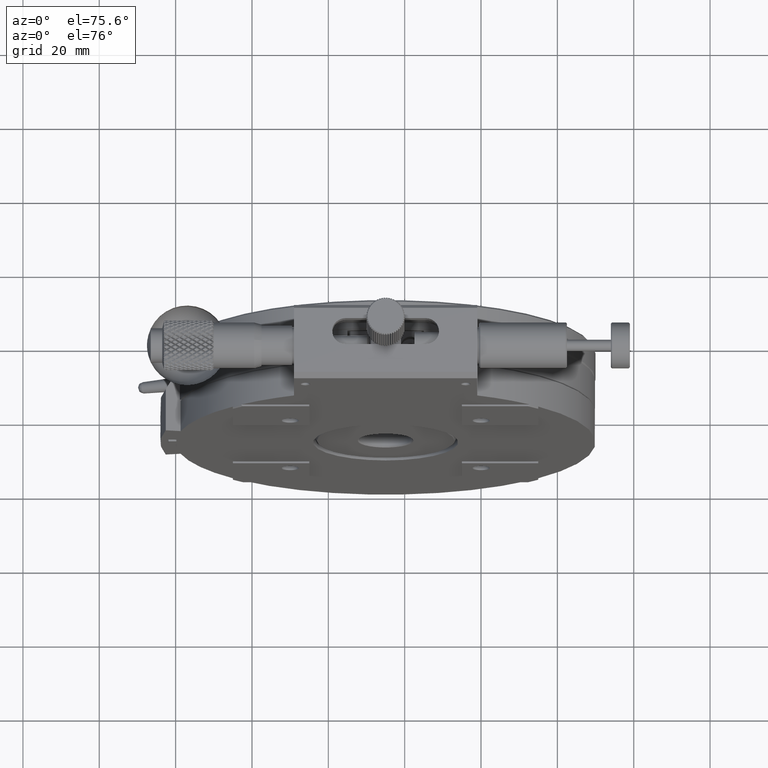
[diagram: clean part render]
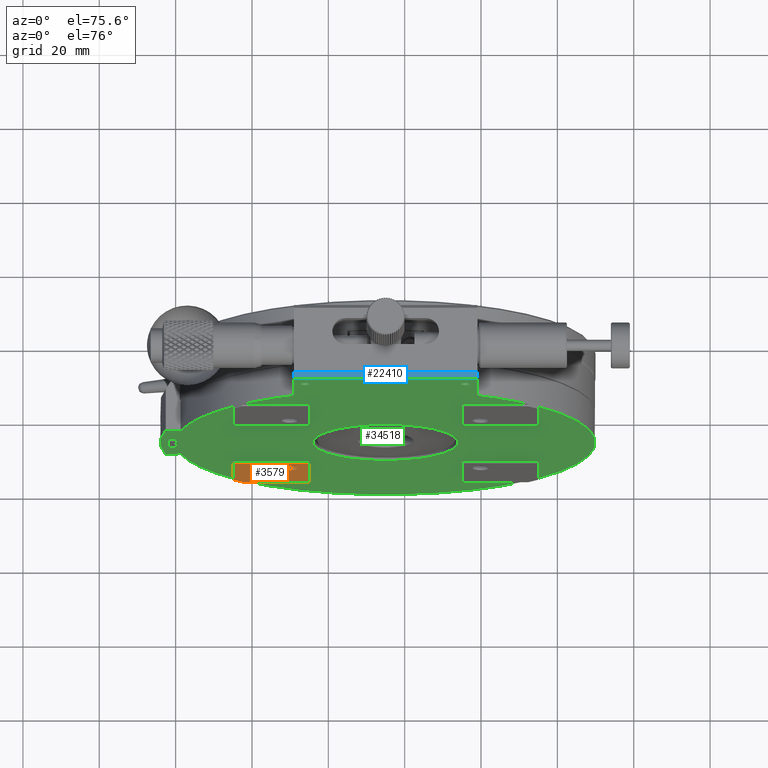
[diagram: same view with three faces highlighted in distinct colors, each labeled with its STEP entity id]
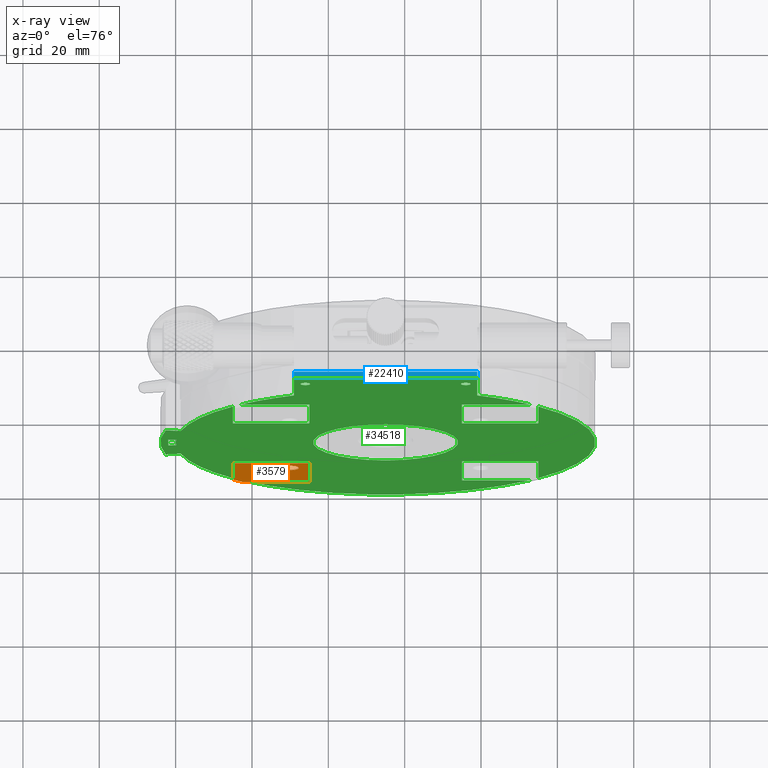
[diagram: x-ray of the same camera — body ghosted, the three highlighted faces saturated]
A machine part, auxiliary view with three faces highlighted in distinct colors.
The next image is the same camera in x-ray (body ghosted, the three faces saturated) — at least one of them is partly hidden behind the body in this view.
Their STEP definitions:

[orange] entity #3579 — the highlighted planar face has unit normal (0, -1, 0).
#3401 = AXIS2_PLACEMENT_3D ( 'NONE', #10436, #31596, #51890 ) ;
#3579 = ADVANCED_FACE ( 'NONE', ( #25588, #89123 ), #32494, .T. ) ;
#3642 = VECTOR ( 'NONE', #51542, 1000.000000000000000 ) ;
#4250 = EDGE_CURVE ( 'NONE', #30678, #68618, #47598, .T. ) ;
#4497 = CARTESIAN_POINT ( 'NONE',  ( 35.00000000000000000, 0.000000000000000000, -95.00000000000001421 ) ) ;
#5382 = DIRECTION ( 'NONE',  ( 4.928191693115926794E-19, 1.000000000000000000, 1.243498156241757698E-34 ) ) ;
#10436 = CARTESIAN_POINT ( 'NONE',  ( 30.00000000000000000, 0.000000000000000000, -80.00000000000000000 ) ) ;
#12278 = EDGE_LOOP ( 'NONE', ( #62811, #16320, #35238, #31902, #80089 ) ) ;
#16320 = ORIENTED_EDGE ( 'NONE', *, *, #67347, .T. ) ;
#18090 = CIRCLE ( 'NONE', #3401, 2.250000000000001776 ) ;
#20075 = CARTESIAN_POINT ( 'NONE',  ( 74.30000000000001137, 0.000000000000000000, -55.00000000000000000 ) ) ;
#20593 = AXIS2_PLACEMENT_3D ( 'NONE', #47261, #5382, #38962 ) ;
#21160 = EDGE_CURVE ( 'NONE', #76170, #76170, #18090, .T. ) ;
#22129 = LINE ( 'NONE', #70028, #55670 ) ;
#25504 = EDGE_CURVE ( 'NONE', #61728, #62119, #37687, .T. ) ;
#25588 = FACE_OUTER_BOUND ( 'NONE', #12278, .T. ) ;
#29117 = ORIENTED_EDGE ( 'NONE', *, *, #21160, .T. ) ;
#30375 = CARTESIAN_POINT ( 'NONE',  ( 14.99999999999998579, 5.798968125585571431E-15, -92.31072231946200191 ) ) ;
#30678 = VERTEX_POINT ( 'NONE', #68094 ) ;
#31596 = DIRECTION ( 'NONE',  ( -0.000000000000000000, 1.000000000000000000, -0.000000000000000000 ) ) ;
#31902 = ORIENTED_EDGE ( 'NONE', *, *, #66488, .T. ) ;
#32339 = CIRCLE ( 'NONE', #20593, 54.69999999999999574 ) ;
#32494 = PLANE ( 'NONE',  #52736 ) ;
#35238 = ORIENTED_EDGE ( 'NONE', *, *, #25504, .T. ) ;
#37687 = LINE ( 'NONE', #38604, #3642 ) ;
#38604 = CARTESIAN_POINT ( 'NONE',  ( 74.30000000000001137, 0.000000000000000000, -75.00000000000000000 ) ) ;
#38962 = DIRECTION ( 'NONE',  ( -1.000000000000000000, 4.928191693115953757E-19, 0.000000000000000000 ) ) ;
#47261 = CARTESIAN_POINT ( 'NONE',  ( 55.00000000000000000, -6.938893903907228378E-15, -55.00000000000000000 ) ) ;
#47598 = LINE ( 'NONE', #89024, #76305 ) ;
#48143 = DIRECTION ( 'NONE',  ( 0.000000000000000000, -0.000000000000000000, -1.000000000000000000 ) ) ;
#51542 = DIRECTION ( 'NONE',  ( -1.000000000000000000, -0.000000000000000000, -0.000000000000000000 ) ) ;
#51890 = DIRECTION ( 'NONE',  ( 0.000000000000000000, 0.000000000000000000, -1.000000000000000000 ) ) ;
#52736 = AXIS2_PLACEMENT_3D ( 'NONE', #20075, #88659, #48143 ) ;
#54234 = VECTOR ( 'NONE', #73613, 1000.000000000000000 ) ;
#55670 = VECTOR ( 'NONE', #90745, 1000.000000000000000 ) ;
#61728 = VERTEX_POINT ( 'NONE', #75463 ) ;
#62119 = VERTEX_POINT ( 'NONE', #69996 ) ;
#62811 = ORIENTED_EDGE ( 'NONE', *, *, #4250, .T. ) ;
#65352 = LINE ( 'NONE', #86513, #54234 ) ;
#66488 = EDGE_CURVE ( 'NONE', #62119, #71842, #65352, .T. ) ;
#67347 = EDGE_CURVE ( 'NONE', #68618, #61728, #22129, .T. ) ;
#68094 = CARTESIAN_POINT ( 'NONE',  ( 17.68927768053799454, -3.469446951953614189E-15, -95.00000000000000000 ) ) ;
#68618 = VERTEX_POINT ( 'NONE', #4497 ) ;
#69996 = CARTESIAN_POINT ( 'NONE',  ( 15.00000000000000000, 0.000000000000000000, -75.00000000000000000 ) ) ;
#70028 = CARTESIAN_POINT ( 'NONE',  ( 35.00000000000000000, 0.000000000000000000, -55.00000000000000000 ) ) ;
#71231 = EDGE_CURVE ( 'NONE', #30678, #71842, #32339, .T. ) ;
#71842 = VERTEX_POINT ( 'NONE', #30375 ) ;
#72099 = EDGE_LOOP ( 'NONE', ( #29117 ) ) ;
#73613 = DIRECTION ( 'NONE',  ( 0.000000000000000000, -0.000000000000000000, -1.000000000000000000 ) ) ;
#74750 = DIRECTION ( 'NONE',  ( 1.000000000000000000, 0.000000000000000000, 0.000000000000000000 ) ) ;
#75463 = CARTESIAN_POINT ( 'NONE',  ( 35.00000000000000000, 0.000000000000000000, -75.00000000000000000 ) ) ;
#76170 = VERTEX_POINT ( 'NONE', #90458 ) ;
#76305 = VECTOR ( 'NONE', #74750, 1000.000000000000000 ) ;
#80089 = ORIENTED_EDGE ( 'NONE', *, *, #71231, .F. ) ;
#86513 = CARTESIAN_POINT ( 'NONE',  ( 15.00000000000000000, 0.000000000000000000, -55.00000000000000000 ) ) ;
#88659 = DIRECTION ( 'NONE',  ( 0.000000000000000000, -1.000000000000000000, 0.000000000000000000 ) ) ;
#89024 = CARTESIAN_POINT ( 'NONE',  ( 74.30000000000001137, 0.000000000000000000, -95.00000000000000000 ) ) ;
#89123 = FACE_BOUND ( 'NONE', #72099, .T. ) ;
#90458 = CARTESIAN_POINT ( 'NONE',  ( 30.00000000000000000, 0.000000000000000000, -82.25000000000000000 ) ) ;
#90745 = DIRECTION ( 'NONE',  ( -0.000000000000000000, 0.000000000000000000, 1.000000000000000000 ) ) ;

[blue] entity #22410 — the highlighted planar face has unit normal (0, 0.7071, -0.7071).
#389 = EDGE_CURVE ( 'NONE', #32037, #14409, #5736, .T. ) ;
#2725 = DIRECTION ( 'NONE',  ( 1.000000000000000000, -0.000000000000000000, 0.000000000000000000 ) ) ;
#2746 = EDGE_CURVE ( 'NONE', #35521, #14409, #10406, .T. ) ;
#5736 = LINE ( 'NONE', #53178, #83496 ) ;
#8099 = DIRECTION ( 'NONE',  ( 0.000000000000000000, -0.7071067811865449082, -0.7071067811865501263 ) ) ;
#9505 = CARTESIAN_POINT ( 'NONE',  ( 79.00000000000000000, 1.899999999999989919, 14.00000000000000000 ) ) ;
#10029 = LINE ( 'NONE', #31645, #59090 ) ;
#10406 = LINE ( 'NONE', #9505, #58575 ) ;
#14029 = VERTEX_POINT ( 'NONE', #22236 ) ;
#14409 = VERTEX_POINT ( 'NONE', #50670 ) ;
#18088 = PLANE ( 'NONE',  #40187 ) ;
#22236 = CARTESIAN_POINT ( 'NONE',  ( 31.00000000000000000, 1.899999999999989919, 14.00000000000000000 ) ) ;
#22410 = ADVANCED_FACE ( 'NONE', ( #74675 ), #18088, .F. ) ;
#31645 = CARTESIAN_POINT ( 'NONE',  ( 79.00000000000000000, 1.899999999999989919, 14.00000000000000000 ) ) ;
#32037 = VERTEX_POINT ( 'NONE', #64529 ) ;
#35521 = VERTEX_POINT ( 'NONE', #37741 ) ;
#37741 = CARTESIAN_POINT ( 'NONE',  ( 79.00000000000000000, 1.899999999999989919, 14.00000000000000000 ) ) ;
#38887 = VECTOR ( 'NONE', #8099, 1000.000000000000000 ) ;
#40187 = AXIS2_PLACEMENT_3D ( 'NONE', #46174, #54428, #81549 ) ;
#40235 = DIRECTION ( 'NONE',  ( 1.000000000000000000, 0.000000000000000000, -0.000000000000000000 ) ) ;
#41459 = EDGE_CURVE ( 'NONE', #14029, #35521, #10029, .T. ) ;
#46174 = CARTESIAN_POINT ( 'NONE',  ( 79.00000000000000000, 1.899999999999989919, 14.00000000000000000 ) ) ;
#50670 = CARTESIAN_POINT ( 'NONE',  ( 79.00000000000000000, 0.5000000000000000000, 12.59999999999999964 ) ) ;
#53178 = CARTESIAN_POINT ( 'NONE',  ( 79.00000000000000000, 0.5000000000000000000, 12.59999999999999964 ) ) ;
#54428 = DIRECTION ( 'NONE',  ( 0.000000000000000000, 0.7071067811865510144, -0.7071067811865441310 ) ) ;
#55535 = ORIENTED_EDGE ( 'NONE', *, *, #2746, .F. ) ;
#56442 = CARTESIAN_POINT ( 'NONE',  ( 31.00000000000000000, 1.899999999999989919, 14.00000000000000000 ) ) ;
#58575 = VECTOR ( 'NONE', #86374, 1000.000000000000000 ) ;
#59090 = VECTOR ( 'NONE', #2725, 1000.000000000000000 ) ;
#64529 = CARTESIAN_POINT ( 'NONE',  ( 31.00000000000000000, 0.5000000000000000000, 12.59999999999999964 ) ) ;
#70614 = ORIENTED_EDGE ( 'NONE', *, *, #41459, .F. ) ;
#74675 = FACE_OUTER_BOUND ( 'NONE', #87764, .T. ) ;
#76125 = ORIENTED_EDGE ( 'NONE', *, *, #81602, .T. ) ;
#81549 = DIRECTION ( 'NONE',  ( 0.000000000000000000, 0.7071067811865441310, 0.7071067811865510144 ) ) ;
#81602 = EDGE_CURVE ( 'NONE', #14029, #32037, #85415, .T. ) ;
#83496 = VECTOR ( 'NONE', #40235, 1000.000000000000000 ) ;
#83920 = ORIENTED_EDGE ( 'NONE', *, *, #389, .T. ) ;
#85415 = LINE ( 'NONE', #56442, #38887 ) ;
#86374 = DIRECTION ( 'NONE',  ( 0.000000000000000000, -0.7071067811865449082, -0.7071067811865501263 ) ) ;
#87764 = EDGE_LOOP ( 'NONE', ( #83920, #55535, #70614, #76125 ) ) ;

[green] entity #34518 — the highlighted planar face has unit normal (0, 1, 0).
#199 = VERTEX_POINT ( 'NONE', #90525 ) ;
#225 = CARTESIAN_POINT ( 'NONE',  ( 34.00000000000000000, 0.4999999999881765689, 6.500000000000000888 ) ) ;
#327 = CARTESIAN_POINT ( 'NONE',  ( 14.99999999999998579, 0.5000000000000000000, -92.74917217635378108 ) ) ;
#365 = CARTESIAN_POINT ( 'NONE',  ( 79.00000000000000000, 0.5000000000000000000, -95.00000000000000000 ) ) ;
#389 = EDGE_CURVE ( 'NONE', #32037, #14409, #5736, .T. ) ;
#691 = DIRECTION ( 'NONE',  ( 0.000000000000000000, -0.000000000000000000, 1.000000000000000000 ) ) ;
#722 = CARTESIAN_POINT ( 'NONE',  ( 76.00000000000000000, 0.4999999999313331500, 5.249999999989540811 ) ) ;
#821 = DIRECTION ( 'NONE',  ( 1.000000000000000000, 0.000000000000000000, -0.000000000000000000 ) ) ;
#902 = ORIENTED_EDGE ( 'NONE', *, *, #2605, .F. ) ;
#1326 = LINE ( 'NONE', #66053, #47187 ) ;
#1581 = DIRECTION ( 'NONE',  ( -0.000000000000000000, 1.000000000000000000, -0.000000000000000000 ) ) ;
#1656 = CARTESIAN_POINT ( 'NONE',  ( 55.00000000000000000, 0.5000000000000000000, -55.00000000000000000 ) ) ;
#1752 = EDGE_CURVE ( 'NONE', #69826, #62679, #34387, .T. ) ;
#2345 = DIRECTION ( 'NONE',  ( 1.000000000000000000, 0.000000000000000000, -0.000000000000000000 ) ) ;
#2410 = ORIENTED_EDGE ( 'NONE', *, *, #1752, .F. ) ;
#2605 = EDGE_CURVE ( 'NONE', #53362, #44839, #7689, .T. ) ;
#3885 = AXIS2_PLACEMENT_3D ( 'NONE', #29620, #78852, #28726 ) ;
#4135 = LINE ( 'NONE', #66704, #41902 ) ;
#4348 = CARTESIAN_POINT ( 'NONE',  ( 55.00000000000000000, 0.5000000000000004441, -55.00000000000000000 ) ) ;
#4382 = ORIENTED_EDGE ( 'NONE', *, *, #75141, .F. ) ;
#4668 = CARTESIAN_POINT ( 'NONE',  ( 17.25082782364627576, 0.5000000000000000000, -95.00000000000000000 ) ) ;
#4915 = VECTOR ( 'NONE', #49751, 1000.000000000000000 ) ;
#5165 = CIRCLE ( 'NONE', #38946, 54.89999999999999858 ) ;
#5629 = PLANE ( 'NONE',  #31563 ) ;
#5736 = LINE ( 'NONE', #53178, #83496 ) ;
#6117 = CARTESIAN_POINT ( 'NONE',  ( 95.00000000000001421, 0.5000000000000000000, -35.00000000000000000 ) ) ;
#6338 = CARTESIAN_POINT ( 'NONE',  ( 79.00000000000000000, 0.5000000000000000000, -15.00000000000000000 ) ) ;
#6689 = CARTESIAN_POINT ( 'NONE',  ( 1.303719608403659969, 0.5000000000000002220, -66.90417876659570595 ) ) ;
#6690 = EDGE_CURVE ( 'NONE', #55877, #79739, #69313, .T. ) ;
#6783 = DIRECTION ( 'NONE',  ( 0.9762960071199332512, 0.000000000000000000, -0.2164396139381030426 ) ) ;
#6863 = EDGE_CURVE ( 'NONE', #62952, #58644, #32297, .T. ) ;
#7336 = EDGE_CURVE ( 'NONE', #46263, #28362, #67068, .T. ) ;
#7448 = EDGE_CURVE ( 'NONE', #44839, #16251, #8777, .T. ) ;
#7579 = CARTESIAN_POINT ( 'NONE',  ( 15.00000000000000000, 0.5000000000000000000, -35.00000000000000000 ) ) ;
#7582 = VERTEX_POINT ( 'NONE', #722 ) ;
#7689 = LINE ( 'NONE', #78080, #40948 ) ;
#8746 = LINE ( 'NONE', #21659, #4915 ) ;
#8777 = CIRCLE ( 'NONE', #35179, 55.00000000000000000 ) ;
#9199 = AXIS2_PLACEMENT_3D ( 'NONE', #28982, #86965, #43269 ) ;
#9231 = ORIENTED_EDGE ( 'NONE', *, *, #7448, .F. ) ;
#9728 = DIRECTION ( 'NONE',  ( 1.000000000000000000, 0.000000000000000000, -0.000000000000000000 ) ) ;
#10634 = LINE ( 'NONE', #47444, #14433 ) ;
#11078 = DIRECTION ( 'NONE',  ( -0.000000000000000000, 1.000000000000000000, -0.000000000000000000 ) ) ;
#11634 = VERTEX_POINT ( 'NONE', #41744 ) ;
#11834 = DIRECTION ( 'NONE',  ( 0.000000000000000000, -0.000000000000000000, 1.000000000000000000 ) ) ;
#11973 = CARTESIAN_POINT ( 'NONE',  ( 55.00000000000000000, 0.5000000000000000000, -55.00000000000000000 ) ) ;
#12549 = DIRECTION ( 'NONE',  ( 0.000000000000000000, -0.000000000000000000, 1.000000000000000000 ) ) ;
#12871 = DIRECTION ( 'NONE',  ( 3.532527805625497904E-15, 0.000000000000000000, -1.000000000000000000 ) ) ;
#12977 = FACE_BOUND ( 'NONE', #67882, .T. ) ;
#13122 = ORIENTED_EDGE ( 'NONE', *, *, #78560, .F. ) ;
#13581 = ORIENTED_EDGE ( 'NONE', *, *, #22163, .F. ) ;
#13666 = EDGE_CURVE ( 'NONE', #62679, #11634, #1326, .T. ) ;
#13746 = ORIENTED_EDGE ( 'NONE', *, *, #7336, .F. ) ;
#14409 = VERTEX_POINT ( 'NONE', #50670 ) ;
#14433 = VECTOR ( 'NONE', #38680, 1000.000000000000000 ) ;
#15681 = DIRECTION ( 'NONE',  ( -0.000000000000000000, 1.000000000000000000, -0.000000000000000000 ) ) ;
#15852 = CARTESIAN_POINT ( 'NONE',  ( 0.1816694214876006519, 0.5000000000000004441, -52.00656842654911571 ) ) ;
#16061 = VERTEX_POINT ( 'NONE', #32804 ) ;
#16138 = ORIENTED_EDGE ( 'NONE', *, *, #36525, .T. ) ;
#16251 = VERTEX_POINT ( 'NONE', #41973 ) ;
#17326 = EDGE_LOOP ( 'NONE', ( #13581 ) ) ;
#17796 = CARTESIAN_POINT ( 'NONE',  ( 17.25082782364627576, 0.5000000000000000000, -15.00000000000000000 ) ) ;
#18558 = LINE ( 'NONE', #31879, #73896 ) ;
#18755 = VERTEX_POINT ( 'NONE', #39606 ) ;
#19040 = EDGE_CURVE ( 'NONE', #53814, #16061, #54756, .T. ) ;
#19079 = EDGE_LOOP ( 'NONE', ( #23687, #19719, #76202, #27947 ) ) ;
#19450 = LINE ( 'NONE', #84751, #84615 ) ;
#19719 = ORIENTED_EDGE ( 'NONE', *, *, #35385, .F. ) ;
#19770 = LINE ( 'NONE', #33567, #74716 ) ;
#20299 = EDGE_CURVE ( 'NONE', #80091, #49576, #41087, .T. ) ;
#20764 = CARTESIAN_POINT ( 'NONE',  ( 55.00000000000000000, 0.5000000000000000000, -55.00000000000000000 ) ) ;
#20972 = DIRECTION ( 'NONE',  ( 0.9762960071199332512, 0.000000000000000000, 0.2164396139381030426 ) ) ;
#21659 = CARTESIAN_POINT ( 'NONE',  ( 75.00000000000000000, 0.5000000000000000000, 12.59999999999999964 ) ) ;
#22163 = EDGE_CURVE ( 'NONE', #90914, #90914, #75486, .T. ) ;
#22252 = CARTESIAN_POINT ( 'NONE',  ( 75.00000000000000000, 0.5000000000000000000, -35.00000000000000000 ) ) ;
#22423 = ORIENTED_EDGE ( 'NONE', *, *, #13666, .F. ) ;
#22840 = CARTESIAN_POINT ( 'NONE',  ( 1.303719608403674624, 0.5000000000000001110, -43.09582123340430115 ) ) ;
#23687 = ORIENTED_EDGE ( 'NONE', *, *, #6863, .F. ) ;
#23952 = CARTESIAN_POINT ( 'NONE',  ( 31.00000000000000711, 0.5000000000000000000, -5.512627873365514297 ) ) ;
#24755 = ORIENTED_EDGE ( 'NONE', *, *, #44316, .F. ) ;
#25387 = CIRCLE ( 'NONE', #59174, 1.250000000010459855 ) ;
#25412 = FACE_BOUND ( 'NONE', #68326, .T. ) ;
#25786 = DIRECTION ( 'NONE',  ( 0.000000000000000000, -1.000000000000000000, 0.000000000000000000 ) ) ;
#26134 = LINE ( 'NONE', #47312, #41485 ) ;
#26866 = VECTOR ( 'NONE', #76963, 1000.000000000000000 ) ;
#27164 = LINE ( 'NONE', #55263, #60332 ) ;
#27947 = ORIENTED_EDGE ( 'NONE', *, *, #61779, .F. ) ;
#28180 = CARTESIAN_POINT ( 'NONE',  ( 55.00000000000000000, 0.5000000000000004441, -55.00000000000000000 ) ) ;
#28362 = VERTEX_POINT ( 'NONE', #327 ) ;
#28726 = DIRECTION ( 'NONE',  ( 0.000000000000000000, 0.000000000000000000, -1.000000000000000000 ) ) ;
#28982 = CARTESIAN_POINT ( 'NONE',  ( 55.00000000000000000, 0.5000000000000000000, -55.00000000000000000 ) ) ;
#29172 = CARTESIAN_POINT ( 'NONE',  ( 55.00000000000000000, 0.5000000000000000000, -74.00000000000000000 ) ) ;
#29512 = AXIS2_PLACEMENT_3D ( 'NONE', #60307, #11078, #61217 ) ;
#29620 = CARTESIAN_POINT ( 'NONE',  ( 55.00000000000000000, 0.5000000000000000000, -55.00000000000000000 ) ) ;
#29732 = EDGE_CURVE ( 'NONE', #45403, #33688, #4135, .T. ) ;
#30127 = ORIENTED_EDGE ( 'NONE', *, *, #29732, .F. ) ;
#30308 = AXIS2_PLACEMENT_3D ( 'NONE', #11973, #40027, #12871 ) ;
#30521 = ORIENTED_EDGE ( 'NONE', *, *, #33359, .F. ) ;
#30875 = VERTEX_POINT ( 'NONE', #89766 ) ;
#31217 = CARTESIAN_POINT ( 'NONE',  ( 75.00000000000000000, 0.5000000000000000000, -75.00000000000000000 ) ) ;
#31317 = DIRECTION ( 'NONE',  ( 0.000000000000000000, 0.000000000000000000, -1.000000000000000000 ) ) ;
#31563 = AXIS2_PLACEMENT_3D ( 'NONE', #90308, #32322, #60854 ) ;
#31574 = ORIENTED_EDGE ( 'NONE', *, *, #65817, .F. ) ;
#31879 = CARTESIAN_POINT ( 'NONE',  ( 31.00000000000000000, 0.5000000000000000000, 12.59999999999999964 ) ) ;
#32033 = ORIENTED_EDGE ( 'NONE', *, *, #39461, .F. ) ;
#32037 = VERTEX_POINT ( 'NONE', #64529 ) ;
#32297 = CIRCLE ( 'NONE', #38099, 57.00000000000000000 ) ;
#32322 = DIRECTION ( 'NONE',  ( 0.000000000000000000, 1.000000000000000000, 0.000000000000000000 ) ) ;
#32385 = DIRECTION ( 'NONE',  ( -0.000000000000000000, -1.000000000000000000, -0.000000000000000000 ) ) ;
#32751 = ORIENTED_EDGE ( 'NONE', *, *, #389, .F. ) ;
#32804 = CARTESIAN_POINT ( 'NONE',  ( 92.74917217635372424, 0.5000000000000000000, -15.00000000000000000 ) ) ;
#33141 = CARTESIAN_POINT ( 'NONE',  ( 76.00000000000000000, 0.4999999999313331500, 6.500000000000000888 ) ) ;
#33230 = DIRECTION ( 'NONE',  ( 0.000000000000000000, 0.000000000000000000, 1.000000000000000000 ) ) ;
#33359 = EDGE_CURVE ( 'NONE', #52122, #69826, #86121, .T. ) ;
#33567 = CARTESIAN_POINT ( 'NONE',  ( -1.915206611570255291, 0.5000000000000000000, -58.10793442052280966 ) ) ;
#33688 = VERTEX_POINT ( 'NONE', #31217 ) ;
#34387 = LINE ( 'NONE', #365, #46765 ) ;
#34518 = ADVANCED_FACE ( 'NONE', ( #25412, #40582, #62230, #82933, #12977 ), #5629, .F. ) ;
#35179 = AXIS2_PLACEMENT_3D ( 'NONE', #1656, #72951, #64684 ) ;
#35385 = EDGE_CURVE ( 'NONE', #79723, #62952, #19450, .T. ) ;
#36091 = AXIS2_PLACEMENT_3D ( 'NONE', #49462, #1581, #63258 ) ;
#36525 = EDGE_CURVE ( 'NONE', #58177, #58177, #75808, .T. ) ;
#37159 = EDGE_CURVE ( 'NONE', #199, #52122, #41922, .T. ) ;
#37518 = CARTESIAN_POINT ( 'NONE',  ( 35.00000000000000000, 0.5000000000000000000, -15.00000000000000000 ) ) ;
#37884 = CARTESIAN_POINT ( 'NONE',  ( 35.00000000000000000, 0.5000000000000000000, -95.00000000000001421 ) ) ;
#38099 = AXIS2_PLACEMENT_3D ( 'NONE', #4348, #32385, #60462 ) ;
#38324 = AXIS2_PLACEMENT_3D ( 'NONE', #20764, #15681, #56635 ) ;
#38680 = DIRECTION ( 'NONE',  ( -0.000000000000000000, 0.000000000000000000, -1.000000000000000000 ) ) ;
#38803 = EDGE_CURVE ( 'NONE', #49576, #60082, #70043, .T. ) ;
#38946 = AXIS2_PLACEMENT_3D ( 'NONE', #90305, #47056, #33230 ) ;
#38951 = DIRECTION ( 'NONE',  ( -0.000000000000000000, 0.000000000000000000, -1.000000000000000000 ) ) ;
#39263 = EDGE_CURVE ( 'NONE', #54585, #49076, #8746, .T. ) ;
#39461 = EDGE_CURVE ( 'NONE', #33688, #199, #82326, .T. ) ;
#39606 = CARTESIAN_POINT ( 'NONE',  ( 35.00000000000000000, 0.5000000000000000000, -35.00000000000000000 ) ) ;
#39864 = CARTESIAN_POINT ( 'NONE',  ( 15.00000000000000000, 0.5000000000000000000, 12.59999999999999964 ) ) ;
#40027 = DIRECTION ( 'NONE',  ( -0.000000000000000000, 1.000000000000000000, -0.000000000000000000 ) ) ;
#40235 = DIRECTION ( 'NONE',  ( 1.000000000000000000, 0.000000000000000000, -0.000000000000000000 ) ) ;
#40582 = FACE_OUTER_BOUND ( 'NONE', #63242, .T. ) ;
#40675 = EDGE_CURVE ( 'NONE', #14409, #53814, #26134, .T. ) ;
#40948 = VECTOR ( 'NONE', #6783, 1000.000000000000114 ) ;
#41087 = LINE ( 'NONE', #90812, #26866 ) ;
#41476 = CARTESIAN_POINT ( 'NONE',  ( 92.74917217635372424, 0.5000000000000000000, -95.00000000000000000 ) ) ;
#41483 = ORIENTED_EDGE ( 'NONE', *, *, #85437, .F. ) ;
#41485 = VECTOR ( 'NONE', #76270, 1000.000000000000000 ) ;
#41744 = CARTESIAN_POINT ( 'NONE',  ( 35.00000000000000000, 0.5000000000000000000, -75.00000000000000000 ) ) ;
#41902 = VECTOR ( 'NONE', #60248, 1000.000000000000000 ) ;
#41922 = LINE ( 'NONE', #70018, #77286 ) ;
#41973 = CARTESIAN_POINT ( 'NONE',  ( 15.00000000000000000, 0.5000000000000000000, -17.25082782364627576 ) ) ;
#42758 = VECTOR ( 'NONE', #48100, 1000.000000000000000 ) ;
#42891 = EDGE_CURVE ( 'NONE', #60082, #32037, #18558, .T. ) ;
#43185 = CARTESIAN_POINT ( 'NONE',  ( 95.00000000000000000, 0.5000000000000000000, -92.74917217635372424 ) ) ;
#43232 = EDGE_CURVE ( 'NONE', #7582, #7582, #25387, .T. ) ;
#43269 = DIRECTION ( 'NONE',  ( 5.298791708438247053E-15, 0.000000000000000000, -1.000000000000000000 ) ) ;
#44316 = EDGE_CURVE ( 'NONE', #49076, #75599, #55773, .T. ) ;
#44706 = CARTESIAN_POINT ( 'NONE',  ( 79.00000000000000000, 0.5000000000000000000, -35.00000000000000000 ) ) ;
#44839 = VERTEX_POINT ( 'NONE', #22840 ) ;
#45167 = CARTESIAN_POINT ( 'NONE',  ( -1.915206611570251960, 0.5000000000000004441, -58.10793442052278124 ) ) ;
#45367 = AXIS2_PLACEMENT_3D ( 'NONE', #28180, #70100, #85250 ) ;
#45403 = VERTEX_POINT ( 'NONE', #47375 ) ;
#46096 = CARTESIAN_POINT ( 'NONE',  ( -1.915206611570251960, 0.5000000000000004441, -51.89206557947721166 ) ) ;
#46263 = VERTEX_POINT ( 'NONE', #48761 ) ;
#46765 = VECTOR ( 'NONE', #821, 1000.000000000000000 ) ;
#47056 = DIRECTION ( 'NONE',  ( 0.000000000000000000, 1.000000000000000000, 0.000000000000000000 ) ) ;
#47167 = CIRCLE ( 'NONE', #38324, 55.00000000000000000 ) ;
#47187 = VECTOR ( 'NONE', #87211, 1000.000000000000000 ) ;
#47312 = CARTESIAN_POINT ( 'NONE',  ( 79.00000000000000000, 0.5000000000000000000, 12.59999999999999964 ) ) ;
#47375 = CARTESIAN_POINT ( 'NONE',  ( 95.00000000000001421, 0.5000000000000000000, -75.00000000000000000 ) ) ;
#47444 = CARTESIAN_POINT ( 'NONE',  ( 15.00000000000000000, 0.5000000000000000000, 12.59999999999999964 ) ) ;
#47949 = ORIENTED_EDGE ( 'NONE', *, *, #43232, .F. ) ;
#48100 = DIRECTION ( 'NONE',  ( 0.000000000000000000, -0.000000000000000000, 1.000000000000000000 ) ) ;
#48358 = DIRECTION ( 'NONE',  ( -1.000000000000000000, -0.000000000000000000, 0.000000000000000000 ) ) ;
#48544 = DIRECTION ( 'NONE',  ( 0.000000000000000000, -1.000000000000000000, 0.000000000000000000 ) ) ;
#48761 = CARTESIAN_POINT ( 'NONE',  ( 15.00000000000000000, 0.5000000000000000000, -75.00000000000000000 ) ) ;
#49076 = VERTEX_POINT ( 'NONE', #22252 ) ;
#49161 = DIRECTION ( 'NONE',  ( -1.000000000000000000, -0.000000000000000000, 0.000000000000000000 ) ) ;
#49455 = DIRECTION ( 'NONE',  ( 0.000000000000000000, 0.000000000000000000, -1.000000000000000000 ) ) ;
#49462 = CARTESIAN_POINT ( 'NONE',  ( 55.00000000000000000, 0.5000000000000000000, -55.00000000000000000 ) ) ;
#49576 = VERTEX_POINT ( 'NONE', #17796 ) ;
#49751 = DIRECTION ( 'NONE',  ( -0.000000000000000000, 0.000000000000000000, -1.000000000000000000 ) ) ;
#50588 = CARTESIAN_POINT ( 'NONE',  ( 79.00000000000000000, 0.5000000000000000000, -35.00000000000000000 ) ) ;
#50670 = CARTESIAN_POINT ( 'NONE',  ( 79.00000000000000000, 0.5000000000000000000, 12.59999999999999964 ) ) ;
#51042 = ORIENTED_EDGE ( 'NONE', *, *, #39263, .F. ) ;
#52122 = VERTEX_POINT ( 'NONE', #41476 ) ;
#52531 = LINE ( 'NONE', #44706, #59180 ) ;
#53178 = CARTESIAN_POINT ( 'NONE',  ( 79.00000000000000000, 0.5000000000000000000, 12.59999999999999964 ) ) ;
#53278 = CARTESIAN_POINT ( 'NONE',  ( 35.00000000000000000, 0.5000000000000000000, 12.59999999999999964 ) ) ;
#53362 = VERTEX_POINT ( 'NONE', #80264 ) ;
#53411 = VECTOR ( 'NONE', #77230, 1000.000000000000000 ) ;
#53425 = AXIS2_PLACEMENT_3D ( 'NONE', #225, #48544, #49455 ) ;
#53690 = ORIENTED_EDGE ( 'NONE', *, *, #6690, .T. ) ;
#53814 = VERTEX_POINT ( 'NONE', #77786 ) ;
#53856 = EDGE_CURVE ( 'NONE', #30875, #74541, #47167, .T. ) ;
#54327 = VECTOR ( 'NONE', #38951, 1000.000000000000000 ) ;
#54585 = VERTEX_POINT ( 'NONE', #68288 ) ;
#54756 = CIRCLE ( 'NONE', #9199, 55.00000000000000000 ) ;
#55263 = CARTESIAN_POINT ( 'NONE',  ( 79.00000000000000000, 0.5000000000000000000, -75.00000000000000000 ) ) ;
#55773 = LINE ( 'NONE', #50588, #86509 ) ;
#55815 = VECTOR ( 'NONE', #20972, 1000.000000000000114 ) ;
#55877 = VERTEX_POINT ( 'NONE', #76278 ) ;
#56635 = DIRECTION ( 'NONE',  ( 0.000000000000000000, 0.000000000000000000, -1.000000000000000000 ) ) ;
#57112 = CARTESIAN_POINT ( 'NONE',  ( 1.303719608403686836, 0.5000000000000000000, -66.90417876659570595 ) ) ;
#58177 = VERTEX_POINT ( 'NONE', #29172 ) ;
#58612 = CIRCLE ( 'NONE', #45367, 59.00000000000000711 ) ;
#58644 = VERTEX_POINT ( 'NONE', #45167 ) ;
#58709 = EDGE_CURVE ( 'NONE', #64656, #18755, #52531, .T. ) ;
#59174 = AXIS2_PLACEMENT_3D ( 'NONE', #33141, #25786, #31317 ) ;
#59180 = VECTOR ( 'NONE', #9728, 1000.000000000000000 ) ;
#60082 = VERTEX_POINT ( 'NONE', #23952 ) ;
#60248 = DIRECTION ( 'NONE',  ( -1.000000000000000000, -0.000000000000000000, 0.000000000000000000 ) ) ;
#60307 = CARTESIAN_POINT ( 'NONE',  ( 55.00000000000000000, 0.5000000000000000000, -55.00000000000000000 ) ) ;
#60332 = VECTOR ( 'NONE', #48358, 1000.000000000000000 ) ;
#60462 = DIRECTION ( 'NONE',  ( 0.000000000000000000, 0.000000000000000000, 1.000000000000000000 ) ) ;
#60854 = DIRECTION ( 'NONE',  ( 0.000000000000000000, -0.000000000000000000, 1.000000000000000000 ) ) ;
#61217 = DIRECTION ( 'NONE',  ( 8.831319514063744760E-16, 0.000000000000000000, -1.000000000000000000 ) ) ;
#61536 = ORIENTED_EDGE ( 'NONE', *, *, #42891, .F. ) ;
#61661 = DIRECTION ( 'NONE',  ( 0.9985123966942146545, 0.000000000000000000, 0.05452516527233366994 ) ) ;
#61779 = EDGE_CURVE ( 'NONE', #58644, #75751, #19770, .T. ) ;
#62230 = FACE_BOUND ( 'NONE', #19079, .T. ) ;
#62561 = ORIENTED_EDGE ( 'NONE', *, *, #78245, .F. ) ;
#62602 = ORIENTED_EDGE ( 'NONE', *, *, #19040, .F. ) ;
#62659 = ORIENTED_EDGE ( 'NONE', *, *, #66421, .F. ) ;
#62679 = VERTEX_POINT ( 'NONE', #37884 ) ;
#62952 = VERTEX_POINT ( 'NONE', #46096 ) ;
#63242 = EDGE_LOOP ( 'NONE', ( #62561, #13746, #76112, #22423, #2410, #30521, #76320, #32033, #30127, #13122, #75000, #41483, #24755, #51042, #68598, #62602, #85221, #32751, #61536, #81429, #85975, #62659, #73061, #4382, #9231, #902, #31574, #53690 ) ) ;
#63258 = DIRECTION ( 'NONE',  ( 0.000000000000000000, 0.000000000000000000, -1.000000000000000000 ) ) ;
#64529 = CARTESIAN_POINT ( 'NONE',  ( 31.00000000000000000, 0.5000000000000000000, 12.59999999999999964 ) ) ;
#64656 = VERTEX_POINT ( 'NONE', #7579 ) ;
#64684 = DIRECTION ( 'NONE',  ( -8.831319514063744760E-16, 0.000000000000000000, -1.000000000000000000 ) ) ;
#65329 = EDGE_CURVE ( 'NONE', #11634, #46263, #27164, .T. ) ;
#65817 = EDGE_CURVE ( 'NONE', #55877, #53362, #58612, .T. ) ;
#66053 = CARTESIAN_POINT ( 'NONE',  ( 35.00000000000000000, 0.5000000000000000000, 12.59999999999999964 ) ) ;
#66421 = EDGE_CURVE ( 'NONE', #18755, #80091, #88239, .T. ) ;
#66704 = CARTESIAN_POINT ( 'NONE',  ( 79.00000000000000000, 0.5000000000000000000, -75.00000000000000000 ) ) ;
#67068 = LINE ( 'NONE', #39864, #54327 ) ;
#67882 = EDGE_LOOP ( 'NONE', ( #47949 ) ) ;
#68288 = CARTESIAN_POINT ( 'NONE',  ( 75.00000000000000000, 0.5000000000000000000, -15.00000000000000000 ) ) ;
#68326 = EDGE_LOOP ( 'NONE', ( #16138 ) ) ;
#68598 = ORIENTED_EDGE ( 'NONE', *, *, #75484, .F. ) ;
#69313 = LINE ( 'NONE', #6689, #55815 ) ;
#69423 = LINE ( 'NONE', #6338, #80478 ) ;
#69826 = VERTEX_POINT ( 'NONE', #4668 ) ;
#70018 = CARTESIAN_POINT ( 'NONE',  ( 79.00000000000000000, 0.5000000000000000000, -95.00000000000000000 ) ) ;
#70043 = CIRCLE ( 'NONE', #30308, 55.00000000000000000 ) ;
#70100 = DIRECTION ( 'NONE',  ( 0.000000000000000000, 1.000000000000000000, 0.000000000000000000 ) ) ;
#72882 = VECTOR ( 'NONE', #691, 1000.000000000000000 ) ;
#72951 = DIRECTION ( 'NONE',  ( -0.000000000000000000, 1.000000000000000000, -0.000000000000000000 ) ) ;
#73061 = ORIENTED_EDGE ( 'NONE', *, *, #58709, .F. ) ;
#73896 = VECTOR ( 'NONE', #12549, 1000.000000000000000 ) ;
#74541 = VERTEX_POINT ( 'NONE', #43185 ) ;
#74716 = VECTOR ( 'NONE', #61661, 1000.000000000000114 ) ;
#75000 = ORIENTED_EDGE ( 'NONE', *, *, #53856, .F. ) ;
#75141 = EDGE_CURVE ( 'NONE', #16251, #64656, #10634, .T. ) ;
#75484 = EDGE_CURVE ( 'NONE', #16061, #54585, #69423, .T. ) ;
#75486 = CIRCLE ( 'NONE', #53425, 1.250000000010459855 ) ;
#75599 = VERTEX_POINT ( 'NONE', #6117 ) ;
#75751 = VERTEX_POINT ( 'NONE', #84347 ) ;
#75808 = CIRCLE ( 'NONE', #36091, 18.99999999999999645 ) ;
#76027 = DIRECTION ( 'NONE',  ( 1.000000000000000000, 0.000000000000000000, -0.000000000000000000 ) ) ;
#76112 = ORIENTED_EDGE ( 'NONE', *, *, #65329, .F. ) ;
#76202 = ORIENTED_EDGE ( 'NONE', *, *, #87827, .F. ) ;
#76270 = DIRECTION ( 'NONE',  ( -0.000000000000000000, 0.000000000000000000, -1.000000000000000000 ) ) ;
#76278 = CARTESIAN_POINT ( 'NONE',  ( -2.601464420076061490, 0.5000000000000038858, -67.76993722234811912 ) ) ;
#76320 = ORIENTED_EDGE ( 'NONE', *, *, #37159, .F. ) ;
#76963 = DIRECTION ( 'NONE',  ( -1.000000000000000000, -0.000000000000000000, 0.000000000000000000 ) ) ;
#77230 = DIRECTION ( 'NONE',  ( -0.000000000000000000, 0.000000000000000000, -1.000000000000000000 ) ) ;
#77286 = VECTOR ( 'NONE', #2345, 1000.000000000000000 ) ;
#77786 = CARTESIAN_POINT ( 'NONE',  ( 79.00000000000001421, 0.5000000000000000000, -5.512627873365517850 ) ) ;
#77939 = LINE ( 'NONE', #78829, #72882 ) ;
#78080 = CARTESIAN_POINT ( 'NONE',  ( 1.303719608403659969, 0.5000000000000002220, -43.09582123340430115 ) ) ;
#78245 = EDGE_CURVE ( 'NONE', #28362, #79739, #82421, .T. ) ;
#78560 = EDGE_CURVE ( 'NONE', #74541, #45403, #81676, .T. ) ;
#78829 = CARTESIAN_POINT ( 'NONE',  ( 95.00000000000000000, 0.5000000000000000000, 12.59999999999999964 ) ) ;
#78852 = DIRECTION ( 'NONE',  ( -0.000000000000000000, 1.000000000000000000, -0.000000000000000000 ) ) ;
#79723 = VERTEX_POINT ( 'NONE', #15852 ) ;
#79739 = VERTEX_POINT ( 'NONE', #57112 ) ;
#80091 = VERTEX_POINT ( 'NONE', #37518 ) ;
#80264 = CARTESIAN_POINT ( 'NONE',  ( -2.601464420076065487, 0.5000000000000004441, -42.23006277765189509 ) ) ;
#80478 = VECTOR ( 'NONE', #49161, 1000.000000000000000 ) ;
#81429 = ORIENTED_EDGE ( 'NONE', *, *, #38803, .F. ) ;
#81676 = LINE ( 'NONE', #88617, #42758 ) ;
#82326 = LINE ( 'NONE', #91072, #53411 ) ;
#82421 = CIRCLE ( 'NONE', #29512, 55.00000000000000000 ) ;
#82933 = FACE_BOUND ( 'NONE', #17326, .T. ) ;
#83496 = VECTOR ( 'NONE', #40235, 1000.000000000000000 ) ;
#83600 = VECTOR ( 'NONE', #11834, 1000.000000000000000 ) ;
#84000 = CARTESIAN_POINT ( 'NONE',  ( 34.00000000000000000, 0.4999999999881765689, 5.249999999989540811 ) ) ;
#84302 = DIRECTION ( 'NONE',  ( -0.9985123966942146545, 0.000000000000000000, 0.05452516527233366994 ) ) ;
#84347 = CARTESIAN_POINT ( 'NONE',  ( 0.1816694214876006519, 0.5000000000000004441, -57.99343157345089139 ) ) ;
#84615 = VECTOR ( 'NONE', #84302, 1000.000000000000114 ) ;
#84751 = CARTESIAN_POINT ( 'NONE',  ( 0.1816694214876041213, 0.5000000000000000000, -52.00656842654910150 ) ) ;
#85221 = ORIENTED_EDGE ( 'NONE', *, *, #40675, .F. ) ;
#85250 = DIRECTION ( 'NONE',  ( 0.000000000000000000, 0.000000000000000000, 1.000000000000000000 ) ) ;
#85437 = EDGE_CURVE ( 'NONE', #75599, #30875, #77939, .T. ) ;
#85975 = ORIENTED_EDGE ( 'NONE', *, *, #20299, .F. ) ;
#86121 = CIRCLE ( 'NONE', #3885, 55.00000000000000000 ) ;
#86509 = VECTOR ( 'NONE', #76027, 1000.000000000000000 ) ;
#86965 = DIRECTION ( 'NONE',  ( -0.000000000000000000, 1.000000000000000000, -0.000000000000000000 ) ) ;
#87211 = DIRECTION ( 'NONE',  ( 0.000000000000000000, -0.000000000000000000, 1.000000000000000000 ) ) ;
#87827 = EDGE_CURVE ( 'NONE', #75751, #79723, #5165, .T. ) ;
#88239 = LINE ( 'NONE', #53278, #83600 ) ;
#88617 = CARTESIAN_POINT ( 'NONE',  ( 95.00000000000000000, 0.5000000000000000000, 12.59999999999999964 ) ) ;
#89766 = CARTESIAN_POINT ( 'NONE',  ( 95.00000000000000000, 0.5000000000000000000, -17.25082782364627576 ) ) ;
#90305 = CARTESIAN_POINT ( 'NONE',  ( 55.00000000000000000, 0.5000000000000004441, -55.00000000000000000 ) ) ;
#90308 = CARTESIAN_POINT ( 'NONE',  ( 79.00000000000000000, 0.5000000000000000000, 12.59999999999999964 ) ) ;
#90525 = CARTESIAN_POINT ( 'NONE',  ( 75.00000000000000000, 0.5000000000000000000, -95.00000000000001421 ) ) ;
#90812 = CARTESIAN_POINT ( 'NONE',  ( 79.00000000000000000, 0.5000000000000000000, -15.00000000000000000 ) ) ;
#90914 = VERTEX_POINT ( 'NONE', #84000 ) ;
#91072 = CARTESIAN_POINT ( 'NONE',  ( 75.00000000000000000, 0.5000000000000000000, 12.59999999999999964 ) ) ;